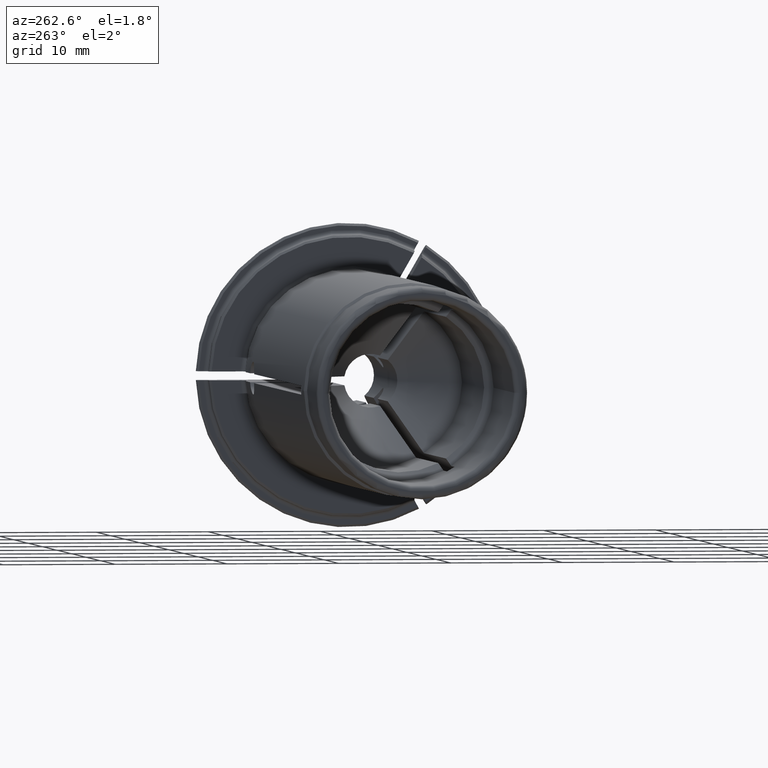
[diagram: clean part render]
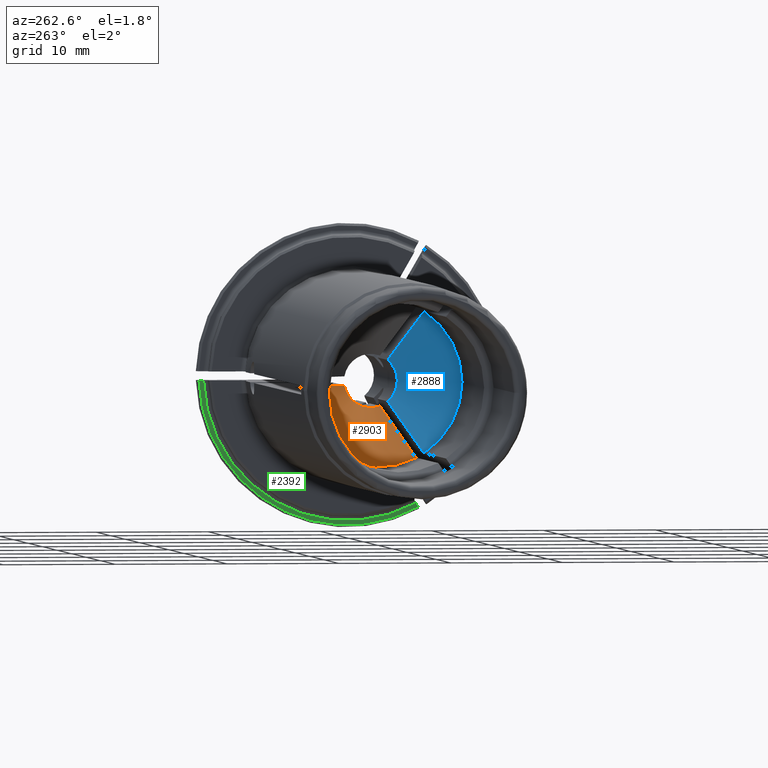
[diagram: same view with three faces highlighted in distinct colors, each labeled with its STEP entity id]
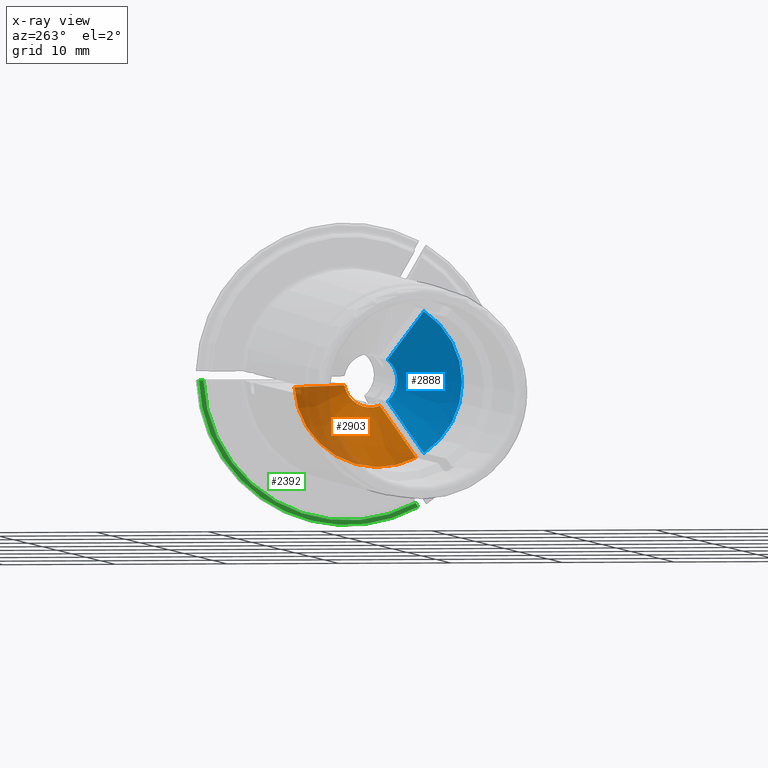
[diagram: x-ray of the same camera — body ghosted, the three highlighted faces saturated]
A machine part, auxiliary view with three faces highlighted in distinct colors.
The next image is the same camera in x-ray (body ghosted, the three faces saturated) — at least one of them is partly hidden behind the body in this view.
Their STEP definitions:

[orange] entity #2903 — the highlighted conical surface has half-angle 45 deg.
#236=CARTESIAN_POINT('',(-1.488125E1,0.E0,0.E0));
#237=DIRECTION('',(1.E0,0.E0,0.E0));
#238=DIRECTION('',(0.E0,-3.474212031432E-1,-9.377091807200E-1));
#239=AXIS2_PLACEMENT_3D('',#236,#237,#238);
#1209=CARTESIAN_POINT('',(-1.488125E1,-8.272967399846E-1,-2.232919986589E0));
#1210=CARTESIAN_POINT('',(-1.514883842594E1,-9.630194954796E-1,
-2.467998694850E0));
#1211=CARTESIAN_POINT('',(-1.571390958758E1,-1.248358653871E0,
-2.962220614573E0));
#1212=CARTESIAN_POINT('',(-1.665077673916E1,-1.719494718453E0,
-3.778252215707E0));
#1213=CARTESIAN_POINT('',(-1.767251415481E1,-2.232209227746E0,
-4.666299795580E0));
#1214=CARTESIAN_POINT('',(-1.878216381135E1,-2.788368960656E0,
-5.629596710104E0));
#1215=CARTESIAN_POINT('',(-1.958392804036E1,-3.189920221246E0,
-6.325103895289E0));
#1216=CARTESIAN_POINT('',(-2.E1,-3.398252707157E0,-6.685946345754E0));
#1218=CARTESIAN_POINT('',(-2.E1,7.489325737341E0,-4.E-1));
#1219=CARTESIAN_POINT('',(-1.958651708664E1,7.075253501876E0,-4.E-1));
#1220=CARTESIAN_POINT('',(-1.878888236628E1,6.276288834643E0,-4.E-1));
#1221=CARTESIAN_POINT('',(-1.768236502131E1,5.167117276093E0,-4.E-1));
#1222=CARTESIAN_POINT('',(-1.666044755928E1,4.141524349765E0,-4.E-1));
#1223=CARTESIAN_POINT('',(-1.572047407209E1,3.196154717254E0,-4.E-1));
#1224=CARTESIAN_POINT('',(-1.515134747973E1,2.621404533897E0,-4.E-1));
#1225=CARTESIAN_POINT('',(-1.488125E1,2.347413802997E0,-4.E-1));
#1261=CARTESIAN_POINT('',(-2.E1,0.E0,0.E0));
#1262=DIRECTION('',(-1.E0,0.E0,0.E0));
#1263=DIRECTION('',(0.E0,9.985767649788E-1,-5.333333333333E-2));
#1264=AXIS2_PLACEMENT_3D('',#1261,#1262,#1263);
#1656=VERTEX_POINT('',#1218);
#1657=VERTEX_POINT('',#1225);
#1845=VERTEX_POINT('',#1209);
#1846=VERTEX_POINT('',#1216);
#2889=CARTESIAN_POINT('',(-1.7440625E1,0.E0,0.E0));
#2890=DIRECTION('',(-1.E0,0.E0,0.E0));
#2891=DIRECTION('',(0.E0,1.E0,0.E0));
#2892=AXIS2_PLACEMENT_3D('',#2889,#2890,#2891);
#2893=CONICAL_SURFACE('',#2892,4.940625E0,4.5E1);
#2895=ORIENTED_EDGE('',*,*,#2894,.T.);
#2897=ORIENTED_EDGE('',*,*,#2896,.F.);
#2899=ORIENTED_EDGE('',*,*,#2898,.T.);
#2900=ORIENTED_EDGE('',*,*,#2072,.F.);
#2901=EDGE_LOOP('',(#2895,#2897,#2899,#2900));
#2902=FACE_OUTER_BOUND('',#2901,.F.);
#2903=ADVANCED_FACE('',(#2902),#2893,.F.);
#240=CIRCLE('',#239,2.38125E0);
#1217=B_SPLINE_CURVE_WITH_KNOTS('',3,(#1209,#1210,#1211,#1212,#1213,#1214,#1215,
#1216),.UNSPECIFIED.,.F.,.F.,(4,1,1,1,1,4),(0.E0,2.E-1,4.E-1,6.E-1,8.E-1,1.E0),
.UNSPECIFIED.);
#1226=B_SPLINE_CURVE_WITH_KNOTS('',3,(#1218,#1219,#1220,#1221,#1222,#1223,#1224,
#1225),.UNSPECIFIED.,.F.,.F.,(4,1,1,1,1,4),(0.E0,2.E-1,4.E-1,6.E-1,8.E-1,1.E0),
.UNSPECIFIED.);
#1265=CIRCLE('',#1264,7.5E0);
#2072=EDGE_CURVE('',#1845,#1657,#240,.T.);
#2894=EDGE_CURVE('',#1845,#1846,#1217,.T.);
#2896=EDGE_CURVE('',#1656,#1846,#1265,.T.);
#2898=EDGE_CURVE('',#1656,#1657,#1226,.T.);

[blue] entity #2888 — the highlighted conical surface has half-angle 45 deg.
#189=CARTESIAN_POINT('',(-1.488125E1,0.E0,0.E0));
#190=DIRECTION('',(1.E0,0.E0,0.E0));
#191=DIRECTION('',(0.E0,-6.383693702938E-1,7.697301780953E-1));
#192=AXIS2_PLACEMENT_3D('',#189,#190,#191);
#1191=CARTESIAN_POINT('',(-2.E1,-4.091073030184E0,-6.285946345754E0));
#1192=CARTESIAN_POINT('',(-1.958717398764E1,-3.884365831079E0,
-5.927918974613E0));
#1193=CARTESIAN_POINT('',(-1.879054291110E1,-3.485386371710E0,
-5.236866279810E0));
#1194=CARTESIAN_POINT('',(-1.768438886696E1,-2.930983602481E0,
-4.276612515649E0));
#1195=CARTESIAN_POINT('',(-1.666232906700E1,-2.418117358480E0,
-3.388302123552E0));
#1196=CARTESIAN_POINT('',(-1.572171269949E1,-1.945111810148E0,
-2.569032481579E0));
#1197=CARTESIAN_POINT('',(-1.515181543582E1,-1.657349779125E0,
-2.070614023357E0));
#1198=CARTESIAN_POINT('',(-1.488125E1,-1.520117063012E0,-1.832919986589E0));
#1200=CARTESIAN_POINT('',(-1.488125E1,-1.520117063012E0,1.832919986589E0));
#1201=CARTESIAN_POINT('',(-1.514883842594E1,-1.655839818507E0,
2.067998694850E0));
#1202=CARTESIAN_POINT('',(-1.571390958758E1,-1.941178976898E0,
2.562220614573E0));
#1203=CARTESIAN_POINT('',(-1.665077673916E1,-2.412315041481E0,
3.378252215707E0));
#1204=CARTESIAN_POINT('',(-1.767251415481E1,-2.925029550773E0,
4.266299795580E0));
#1205=CARTESIAN_POINT('',(-1.878216381135E1,-3.481189283684E0,
5.229596710104E0));
#1206=CARTESIAN_POINT('',(-1.958392804036E1,-3.882740544273E0,
5.925103895289E0));
#1207=CARTESIAN_POINT('',(-2.E1,-4.091073030184E0,6.285946345754E0));
#1244=CARTESIAN_POINT('',(-2.E1,0.E0,0.E0));
#1245=DIRECTION('',(-1.E0,0.E0,0.E0));
#1246=DIRECTION('',(0.E0,-5.454764040246E-1,-8.381261794339E-1));
#1247=AXIS2_PLACEMENT_3D('',#1244,#1245,#1246);
#1751=VERTEX_POINT('',#1200);
#1752=VERTEX_POINT('',#1207);
#1843=VERTEX_POINT('',#1191);
#1844=VERTEX_POINT('',#1198);
#2875=CARTESIAN_POINT('',(-1.7440625E1,0.E0,0.E0));
#2876=DIRECTION('',(-1.E0,0.E0,0.E0));
#2877=DIRECTION('',(0.E0,1.E0,0.E0));
#2878=AXIS2_PLACEMENT_3D('',#2875,#2876,#2877);
#2879=CONICAL_SURFACE('',#2878,4.940625E0,4.5E1);
#2880=ORIENTED_EDGE('',*,*,#2837,.T.);
#2881=ORIENTED_EDGE('',*,*,#2052,.F.);
#2883=ORIENTED_EDGE('',*,*,#2882,.T.);
#2885=ORIENTED_EDGE('',*,*,#2884,.F.);
#2886=EDGE_LOOP('',(#2880,#2881,#2883,#2885));
#2887=FACE_OUTER_BOUND('',#2886,.F.);
#2888=ADVANCED_FACE('',(#2887),#2879,.F.);
#193=CIRCLE('',#192,2.38125E0);
#1199=B_SPLINE_CURVE_WITH_KNOTS('',3,(#1191,#1192,#1193,#1194,#1195,#1196,#1197,
#1198),.UNSPECIFIED.,.F.,.F.,(4,1,1,1,1,4),(0.E0,2.E-1,4.E-1,6.E-1,8.E-1,1.E0),
.UNSPECIFIED.);
#1208=B_SPLINE_CURVE_WITH_KNOTS('',3,(#1200,#1201,#1202,#1203,#1204,#1205,#1206,
#1207),.UNSPECIFIED.,.F.,.F.,(4,1,1,1,1,4),(0.E0,2.E-1,4.E-1,6.E-1,8.E-1,1.E0),
.UNSPECIFIED.);
#1248=CIRCLE('',#1247,7.5E0);
#2052=EDGE_CURVE('',#1751,#1844,#193,.T.);
#2837=EDGE_CURVE('',#1843,#1844,#1199,.T.);
#2882=EDGE_CURVE('',#1751,#1752,#1208,.T.);
#2884=EDGE_CURVE('',#1843,#1752,#1248,.T.);

[green] entity #2392 — the highlighted planar face has unit normal (1, 0, 0).
#630=CARTESIAN_POINT('',(1.E0,0.E0,0.E0));
#631=DIRECTION('',(-1.E0,0.E0,0.E0));
#632=DIRECTION('',(0.E0,9.995476392191E-1,-3.007518796992E-2));
#633=AXIS2_PLACEMENT_3D('',#630,#631,#632);
#651=DIRECTION('',(0.E0,5.E-1,8.660254037844E-1));
#652=VECTOR('',#651,4.001866433871E-1);
#653=CARTESIAN_POINT('',(1.E0,-6.300581639294E0,-1.171292751649E1));
#654=LINE('',#653,#652);
#655=DIRECTION('',(0.E0,-1.E0,0.E0));
#656=VECTOR('',#655,4.001866433871E-1);
#657=CARTESIAN_POINT('',(1.E0,1.329398360161E1,-4.E-1));
#658=LINE('',#657,#656);
#734=CARTESIAN_POINT('',(1.E0,0.E0,0.E0));
#735=DIRECTION('',(1.E0,0.E0,0.E0));
#736=DIRECTION('',(0.E0,-4.729060711318E-1,-8.811128462840E-1));
#737=AXIS2_PLACEMENT_3D('',#734,#735,#736);
#1644=CARTESIAN_POINT('',(1.E0,1.329398360161E1,-4.E-1));
#1645=CARTESIAN_POINT('',(1.E0,1.289379695823E1,-4.E-1));
#1646=VERTEX_POINT('',#1644);
#1647=VERTEX_POINT('',#1645);
#1839=CARTESIAN_POINT('',(1.E0,-6.300581639294E0,-1.171292751649E1));
#1840=CARTESIAN_POINT('',(1.E0,-6.100488317600E0,-1.136635571706E1));
#1841=VERTEX_POINT('',#1839);
#1842=VERTEX_POINT('',#1840);
#2378=CARTESIAN_POINT('',(1.E0,0.E0,0.E0));
#2379=DIRECTION('',(1.E0,0.E0,0.E0));
#2380=DIRECTION('',(0.E0,-1.E0,0.E0));
#2381=AXIS2_PLACEMENT_3D('',#2378,#2379,#2380);
#2382=PLANE('',#2381);
#2384=ORIENTED_EDGE('',*,*,#2383,.F.);
#2385=ORIENTED_EDGE('',*,*,#2344,.F.);
#2387=ORIENTED_EDGE('',*,*,#2386,.T.);
#2389=ORIENTED_EDGE('',*,*,#2388,.F.);
#2390=EDGE_LOOP('',(#2384,#2385,#2387,#2389));
#2391=FACE_OUTER_BOUND('',#2390,.F.);
#2392=ADVANCED_FACE('',(#2391),#2382,.F.);
#634=CIRCLE('',#633,1.33E1);
#738=CIRCLE('',#737,1.29E1);
#2344=EDGE_CURVE('',#1646,#1841,#634,.T.);
#2383=EDGE_CURVE('',#1841,#1842,#654,.T.);
#2386=EDGE_CURVE('',#1646,#1647,#658,.T.);
#2388=EDGE_CURVE('',#1842,#1647,#738,.T.);